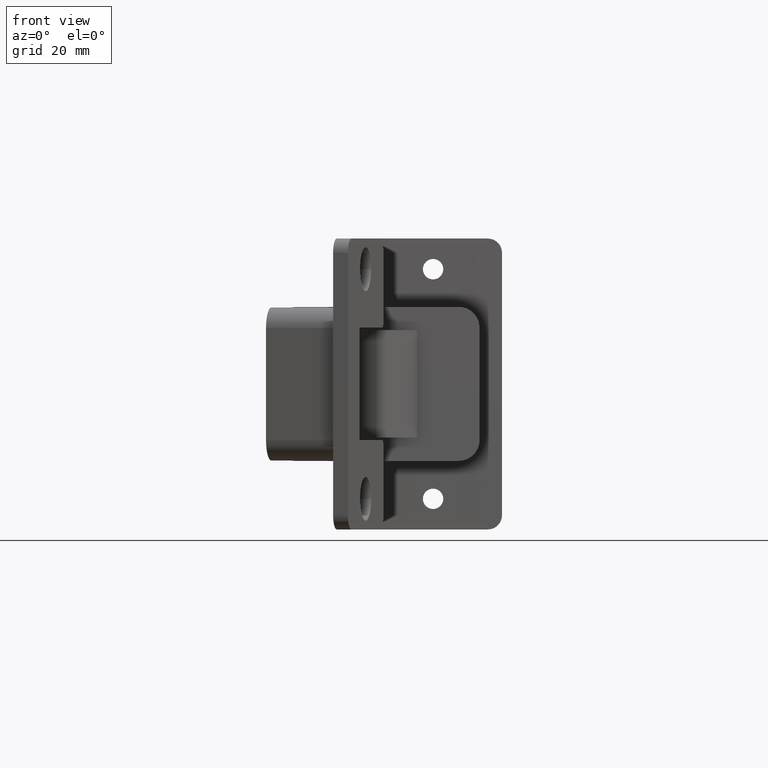
[diagram: clean part render]
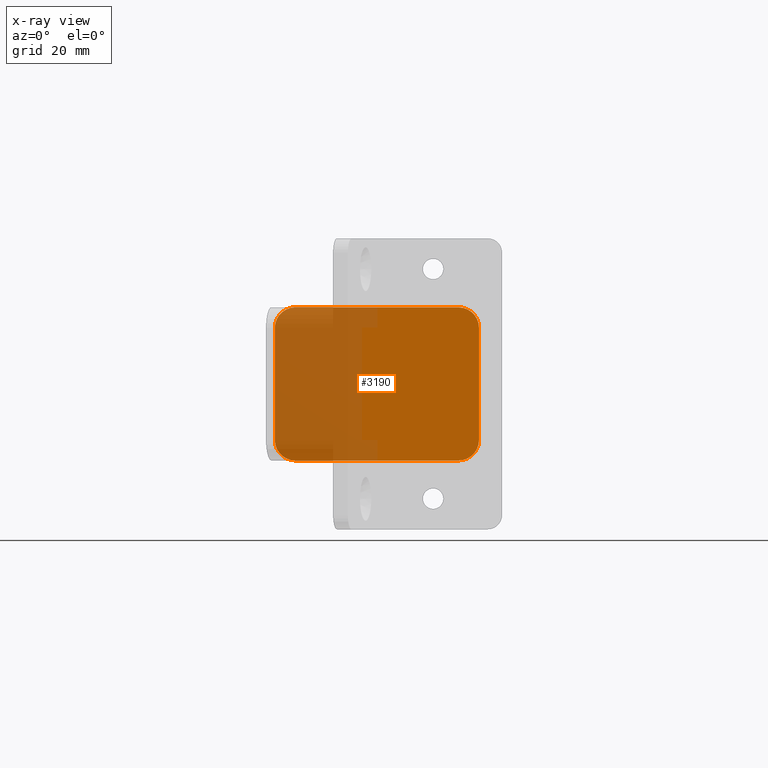
[diagram: x-ray — body ghosted, one internal face saturated and labeled with its STEP entity id]
A machine part, front view, then the same camera in x-ray: the body is ghosted and one INTERNAL B-rep face — a face not visible from any outside direction — is saturated and labeled: STEP entity #3190.
In plain terms, the highlighted planar face has unit normal (-0.0003, -1, 0).
Its self-contained STEP definition (entity closure, byte-faithful):
#147=CIRCLE('',#3401,4.);
#148=CIRCLE('',#3404,4.);
#149=CIRCLE('',#3405,4.);
#150=CIRCLE('',#3406,4.);
#260=FACE_OUTER_BOUND('',#449,.T.);
#449=EDGE_LOOP('',(#2268,#2269,#2270,#2271,#2272,#2273,#2274,#2275));
#687=LINE('',#4787,#1035);
#689=LINE('',#4791,#1037);
#690=LINE('',#4795,#1038);
#691=LINE('',#4799,#1039);
#1035=VECTOR('',#3833,1.);
#1037=VECTOR('',#3837,1.);
#1038=VECTOR('',#3840,1.);
#1039=VECTOR('',#3843,1.);
#1384=VERTEX_POINT('',#4780);
#1385=VERTEX_POINT('',#4782);
#1386=VERTEX_POINT('',#4786);
#1387=VERTEX_POINT('',#4790);
#1388=VERTEX_POINT('',#4792);
#1389=VERTEX_POINT('',#4794);
#1390=VERTEX_POINT('',#4796);
#1391=VERTEX_POINT('',#4798);
#1724=EDGE_CURVE('',#1384,#1385,#147,.T.);
#1726=EDGE_CURVE('',#1386,#1385,#687,.F.);
#1728=EDGE_CURVE('',#1384,#1387,#689,.T.);
#1729=EDGE_CURVE('',#1388,#1387,#148,.T.);
#1730=EDGE_CURVE('',#1389,#1388,#690,.T.);
#1731=EDGE_CURVE('',#1390,#1389,#149,.T.);
#1732=EDGE_CURVE('',#1391,#1390,#691,.T.);
#1733=EDGE_CURVE('',#1386,#1391,#150,.T.);
#2268=ORIENTED_EDGE('',*,*,#1724,.F.);
#2269=ORIENTED_EDGE('',*,*,#1728,.T.);
#2270=ORIENTED_EDGE('',*,*,#1729,.F.);
#2271=ORIENTED_EDGE('',*,*,#1730,.F.);
#2272=ORIENTED_EDGE('',*,*,#1731,.F.);
#2273=ORIENTED_EDGE('',*,*,#1732,.F.);
#2274=ORIENTED_EDGE('',*,*,#1733,.F.);
#2275=ORIENTED_EDGE('',*,*,#1726,.T.);
#3063=PLANE('',#3403);
#3190=ADVANCED_FACE('',(#260),#3063,.T.);
#3401=AXIS2_PLACEMENT_3D('',#4783,#3828,#3829);
#3403=AXIS2_PLACEMENT_3D('',#4789,#3835,#3836);
#3404=AXIS2_PLACEMENT_3D('',#4793,#3838,#3839);
#3405=AXIS2_PLACEMENT_3D('',#4797,#3841,#3842);
#3406=AXIS2_PLACEMENT_3D('',#4800,#3844,#3845);
#3828=DIRECTION('center_axis',(0.000293870465131935,0.999999956820074,0.));
#3829=DIRECTION('ref_axis',(-0.707106750653715,0.000207797798662729,-0.707106781186562));
#3833=DIRECTION('',(0.,0.,1.));
#3835=DIRECTION('center_axis',(-0.000293870465131935,-0.999999956820074,
0.));
#3836=DIRECTION('ref_axis',(0.999999956820074,-0.000293870465131935,0.));
#3837=DIRECTION('',(0.999999956820074,-0.000293870465131907,0.));
#3838=DIRECTION('center_axis',(0.000293870465131935,0.999999956820074,0.));
#3839=DIRECTION('ref_axis',(0.707106750653735,-0.000207797798662723,-0.707106781186542));
#3840=DIRECTION('',(0.,0.,-1.));
#3841=DIRECTION('center_axis',(0.000293870465131935,0.999999956820074,0.));
#3842=DIRECTION('ref_axis',(0.707106750653735,-0.000207797798662723,0.707106781186542));
#3843=DIRECTION('',(0.999999956820074,-0.000293870465131907,0.));
#3844=DIRECTION('center_axis',(0.000293870465131935,0.999999956820074,0.));
#3845=DIRECTION('ref_axis',(-0.707106750653715,0.000207797798662729,0.707106781186562));
#4780=CARTESIAN_POINT('',(-9.00530807886048,-35.8000524837819,-15.0000000000043));
#4782=CARTESIAN_POINT('',(-13.0053079061407,-35.7988770019214,-11.0000000000043));
#4783=CARTESIAN_POINT('Origin',(-9.00530807886048,-35.8000524837819,-11.0000000000043));
#4786=CARTESIAN_POINT('',(-13.0053079061407,-35.7988770019214,11.0000000000045));
#4787=CARTESIAN_POINT('',(-13.0053079061407,-35.7988770019214,-15.0000000000043));
#4789=CARTESIAN_POINT('Origin',(-11.5053080356805,-35.7993178076,-15.0000000000043));
#4790=CARTESIAN_POINT('',(22.9946905393818,-35.8094563386661,-15.0000000000043));
#4791=CARTESIAN_POINT('',(-11.5053080356805,-35.7993178076,-15.0000000000043));
#4792=CARTESIAN_POINT('',(26.9946903666622,-35.8106318205266,-11.0000000000043));
#4793=CARTESIAN_POINT('Origin',(22.9946905393818,-35.8094563386663,-11.0000000000043));
#4794=CARTESIAN_POINT('',(26.9946903666622,-35.8106318205266,11.0000000000045));
#4795=CARTESIAN_POINT('',(26.9946903666622,-35.8106318205266,-15.0000000000043));
#4796=CARTESIAN_POINT('',(22.9946905393818,-35.8094563386661,15.0000000000045));
#4797=CARTESIAN_POINT('Origin',(22.9946905393818,-35.8094563386663,11.0000000000045));
#4798=CARTESIAN_POINT('',(-9.00530807886048,-35.8000524837819,15.0000000000045));
#4799=CARTESIAN_POINT('',(-11.5053080356805,-35.7993178076,15.0000000000045));
#4800=CARTESIAN_POINT('Origin',(-9.00530807886048,-35.8000524837819,11.0000000000045));